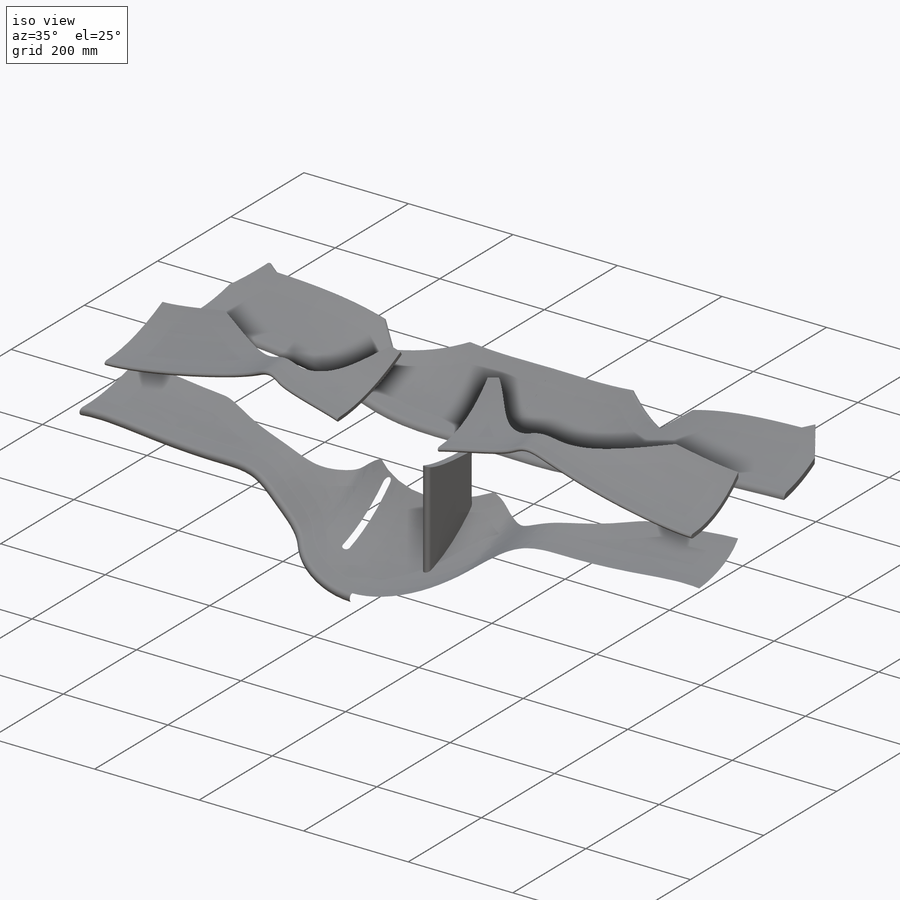
[diagram: iso view]
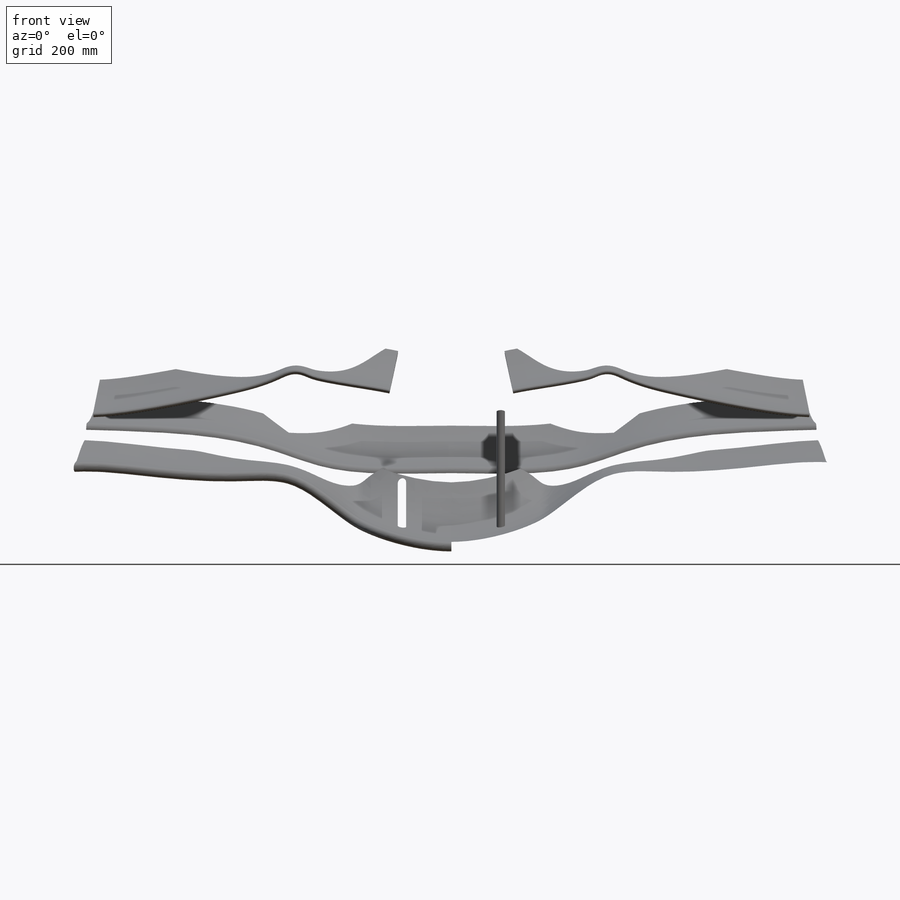
[diagram: front view]
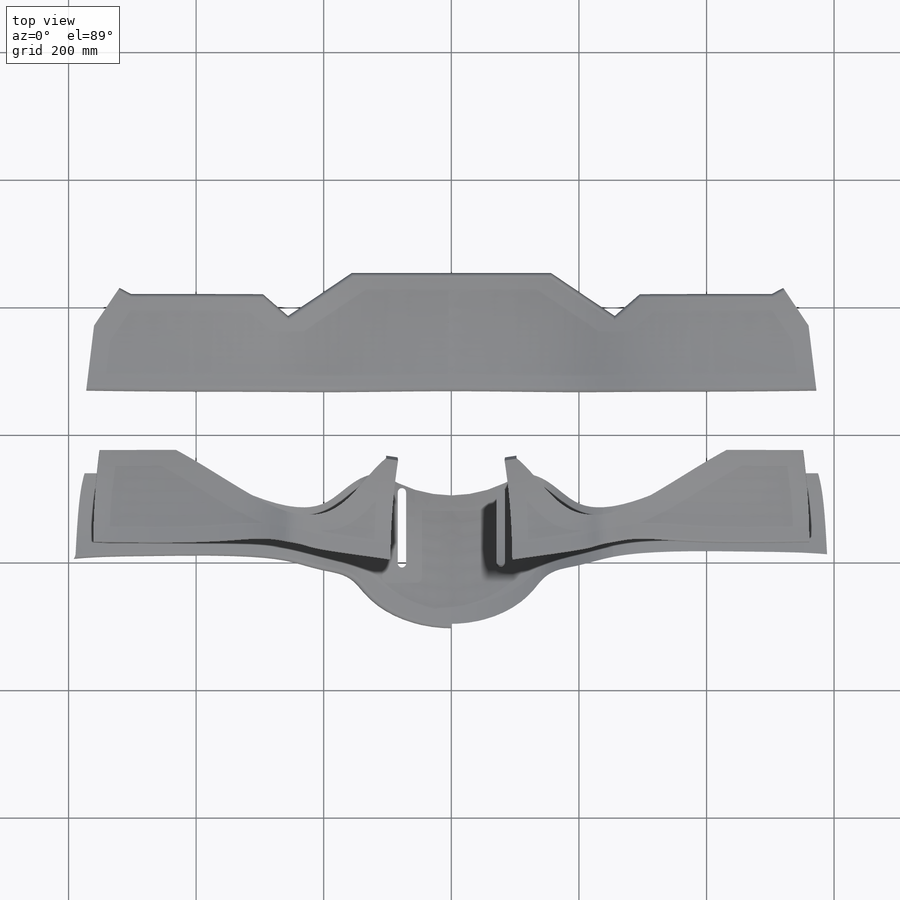
[diagram: top view]
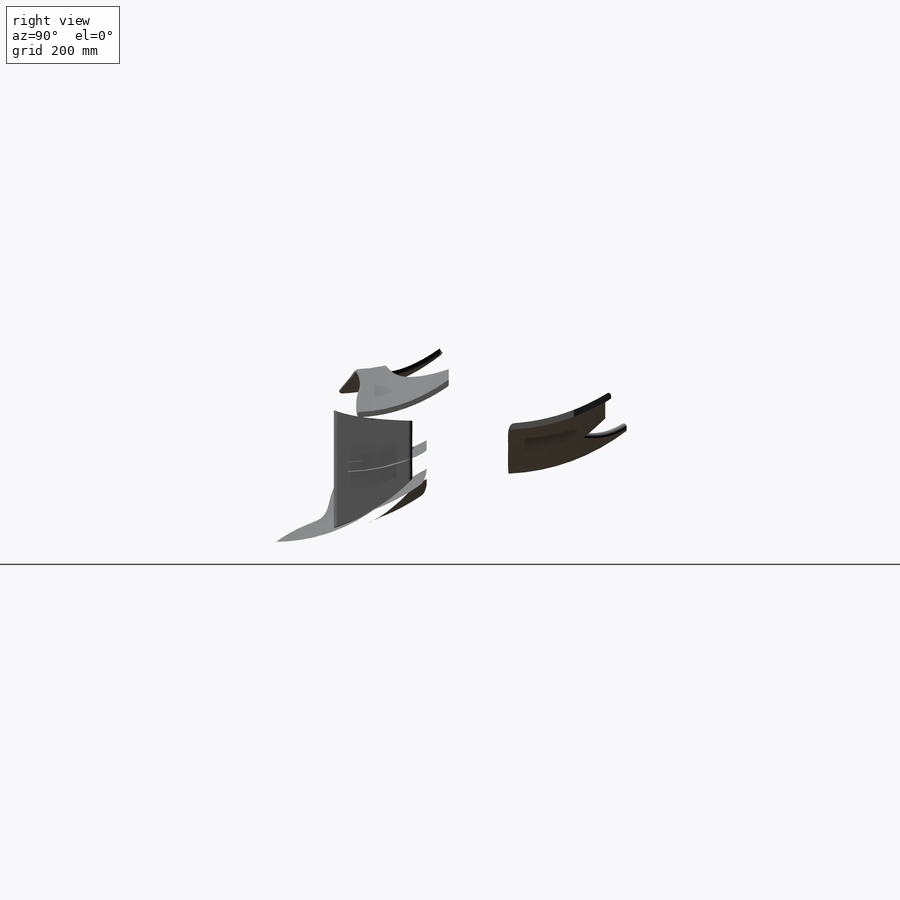
[diagram: right view]
SOLIDWORKS PART (.sldprt)
format: sldprt  version: not decoded by parser v0  size: 13,699,584 bytes
history: native  units: mm
features: sketch x25, fillet x18, cut_extrude x10, mirror x10, shell x10, plane x9, extrude x6, material x1 (+12 scaffold rows collapsed)
feature tree (101):
  scaffold x12  (default folders/planes/origin — collapsed)
  material  "Material <sin especificar>"
  plane  "Alzado"
  plane  "Planta"
  plane  "Vista lateral"
  sketch  "Croquis1"  dims[c1.D1=1400.0mm c1.D2=700.0mm c2.D1=1350.0mm]
  sketch  "Croquis2"
  sketch  "Imagen de croquis6"  dims[c1.D1=1400.0mm c1.D2=700.0mm c1.D3=700.0mm c2.D1=1350.0mm c2.D2=675.0mm]
  sketch  "Croquis3"
  sketch  "Imagen de croquis7"
  plane  "Plano1"  Offset=90mm
  plane  "Plano2"  Offset=641.488588mm
  sketch  "Croquis3D19"  dims[D1=8.0mm]
  sketch  "Croquis17"
  cut_extrude  "Cortar-Extruir16"  [1 undecoded]
  sketch  "Dar espesor4"  dims[D1=15.0mm]
  sketch  "Croquis7"
  cut_extrude  "Cortar-Extruir3"  Depth=410mm
  mirror  "Simetría12"
  sketch  "Dar espesor6"  dims[D1=10.0mm]
  fillet  "Redondeo1"  Radius=7mm
  sketch  "Croquis8"
  cut_extrude  "Cortar-Extruir7"  Depth=390mm
  sketch  "Croquis9"
  cut_extrude  "Cortar-Extruir8"  [1 undecoded]
  mirror  "Simetría29"
  sketch  "Croquis10"
  cut_extrude  "Cortar-Extruir10"  [1 undecoded]
  sketch  "Dar espesor5"  dims[D1=12.0mm]
  mirror  "Simetría18"
  fillet  "Redondeo2"  Radius=7mm
  fillet  "Redondeo3"  Radius=8mm
  fillet  "Redondeo4"  Radius=5mm
  fillet  "Redondeo5"  Radius=6mm
  fillet  "Redondeo6"  Radius=8mm ModelUUID=0mm UUID=0mm
  fillet  "Redondeo7"  Radius=10mm
  fillet  "Redondeo8"  Radius=10mm
  sketch  "Croquis11"
  extrude  "Saliente-Extruir1"  Depth=290mm
  plane  "Plano7"  Offset=772.065843mm
  sketch  "Croquis24"
  cut_extrude  "Cortar-Extruir18"  Depth=610mm
  sketch  "Croquis13"
  cut_extrude  "Cortar-Extruir12"  Depth=15mm
  mirror  "Simetría30"
  fillet  "Redondeo10"  Radius=100mm
  fillet  "Redondeo11"  Radius=140mm
  fillet  "Redondeo12"  Radius=40mm
  shell  "Vaciado1"  Thickness=10mm
  sketch  "Croquis14"  dims[D1=30.0mm D2=30.0mm D3=50.0mm D4=130.0mm D5=63.0mm]
  cut_extrude  "Cortar-Extruir13"  [1 undecoded]
  sketch  "Croquis15"  dims[D1=20.0mm]
  cut_extrude  "Cortar-Extruir14"  Depth=70mm
  mirror  "Simetría42"
  mirror  "Simetría46"
  plane  "Plano4"  Offset=122.660219mm
  sketch  "Croquis18"  dims[c1.D2=6.5mm c1.D1=13.0mm c2.D2=110.0mm c2.D3=110.0mm]
  extrude  "Saliente-Extruir3"  [1 undecoded]
  mirror  "Simetría48"
  fillet  "Redondeo15"  Radius=5mm
  fillet  "Redondeo16"  Radius=5mm
  fillet  "Redondeo17"  Radius=5mm
  fillet  "Redondeo19"  Radius=5mm
  fillet  "Redondeo20"  Radius=5mm
  fillet  "Redondeo21"  Radius=5mm
  fillet  "Redondeo22"  Radius=5mm
  plane  "Plano5"
  sketch  "Croquis19"  dims[D1=5.0mm D2=10.0mm]
  extrude  "Saliente-Extruir4"  [1 undecoded]
  sketch  "Croquis20"
  cut_extrude  "Cortar-Extruir17"  Depth=10mm
  mirror  "Simetría50"
  plane  "Plano6"  Offset=156mm
  sketch  "Croquis21"
  extrude  "Saliente-Extruir6"  [1 undecoded]
  sketch  "Croquis22"  dims[D1=1.0mm]
  extrude  "Saliente-Extruir7"  Depth=55mm
  sketch  "Croquis23"  dims[c1.D5=18.0mm c1.D6=18.0mm c1.D7=5.0mm c1.D1=90.0mm c1.D2=45.0mm c1.D3=9.0mm c1.D4=3.0mm c2.D1=15.0mm]
  extrude  "Saliente-Extruir8"  Depth=5mm
  mirror  "Simetría51"
  mirror  "Simetría53"
  shell  "e08fa823-0b2b-45ac-b11b-b774f12444d3"  Thickness=0mm UUID=0mm ModelUUID=0mm
  shell  "de07628c-0267-4c65-ab61-ee8b781f3f1a"  Thickness=0mm UUID=0mm ModelUUID=0mm
  shell  "2446e9f9-4b06-42be-a4df-07bf75a3f16a"  Thickness=0mm UUID=0mm ModelUUID=0mm
  shell  "c5144e8c-5aa5-4e28-baaa-a843225329b6"  Thickness=0mm UUID=0mm ModelUUID=0mm
  shell  "d9594f78-e6ec-4044-b69e-27be3ec64d49"  Thickness=0mm UUID=0mm ModelUUID=0mm
  shell  "32f5c9c2-07d2-4ec2-850b-5b22f13e9f41"  Thickness=0mm UUID=0mm ModelUUID=0mm
  shell  "cc91bc73-f795-401c-9ffd-ac01fefb29f8"  Thickness=0mm UUID=0mm ModelUUID=0mm
  shell  "6f8e3cee-457e-4009-9a7e-d7da1dd8eaa1"  Thickness=0mm UUID=0mm ModelUUID=0mm
  shell  "61fa4533-242e-4521-b263-12385d485482"  Thickness=0mm UUID=0mm ModelUUID=0mm
decode coverage: 49 of 79 modeling features carry decoded parameters
note: 7 parameter values undecoded
summary: no parameter record found for 7 features
note: suppression state not decoded; provenance and decode notes live in map.json
